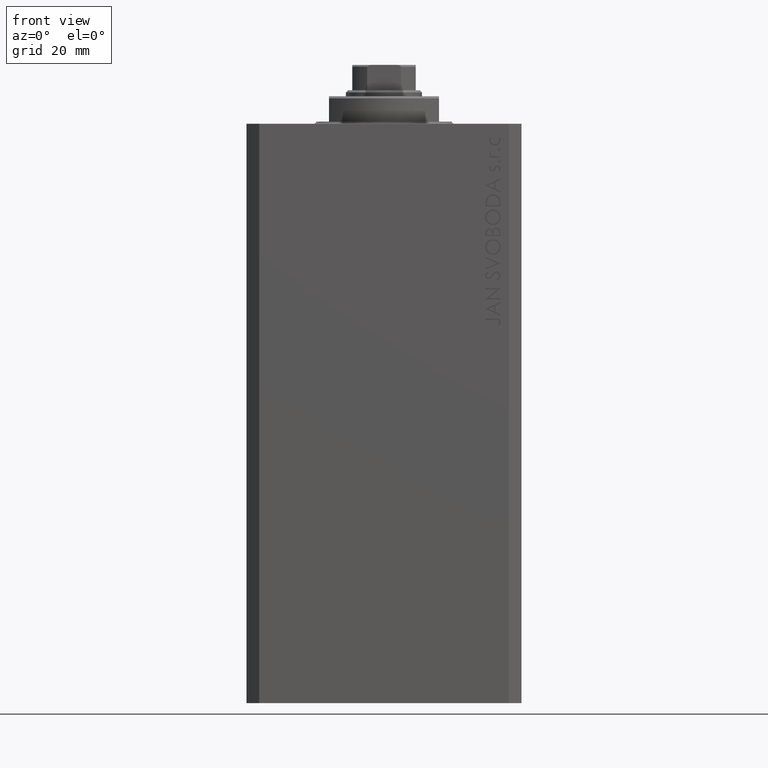
[diagram: clean part render]
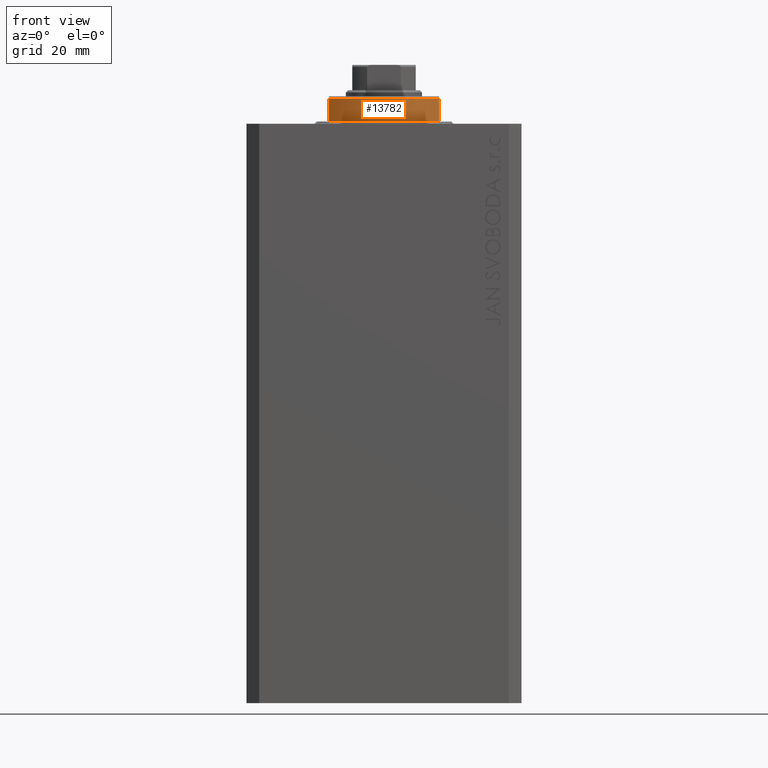
[diagram: same view with one face highlighted and labeled with its STEP entity id]
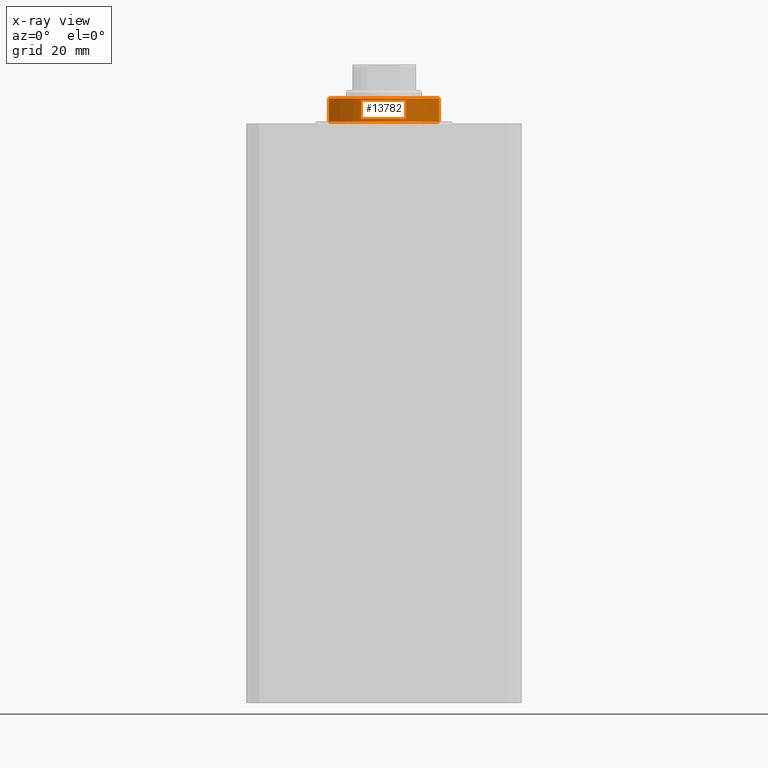
[diagram: x-ray of the same camera — body ghosted, the highlighted face saturated]
A machine part, front view. The second image highlights one B-rep face of the part: STEP entity #13782.
The next image is the same camera in x-ray: the body ghosted, the highlighted face saturated — about 0% of this face is hidden behind the body in this view.
In plain terms, the highlighted cylindrical surface (partial cylindrical patch) has radius 16 mm, axis along (0, 0, -1).
Its self-contained STEP definition (entity closure, byte-faithful):
#196 = CARTESIAN_POINT ( 'NONE',  ( 13.00000000000000000, -9.327379053088815652, -6.000000000000030198 ) ) ;
#1132 = DIRECTION ( 'NONE',  ( 0.000000000000000000, 0.000000000000000000, -1.000000000000000000 ) ) ;
#1429 = AXIS2_PLACEMENT_3D ( 'NONE', #14612, #44217, #36787 ) ;
#1435 = CYLINDRICAL_SURFACE ( 'NONE', #38572, 16.00000000000000000 ) ;
#3150 = DIRECTION ( 'NONE',  ( 1.000000000000000000, 0.000000000000000000, 0.000000000000000000 ) ) ;
#5891 = EDGE_CURVE ( 'NONE', #15892, #45663, #13057, .T. ) ;
#9237 = CARTESIAN_POINT ( 'NONE',  ( 13.00000000000000000, -9.327379053088813876, -6.500000000000000000 ) ) ;
#9511 = VECTOR ( 'NONE', #42661, 1000.000000000000000 ) ;
#12202 = DIRECTION ( 'NONE',  ( 1.000000000000000000, 0.000000000000000000, 0.000000000000000000 ) ) ;
#12603 = CARTESIAN_POINT ( 'NONE',  ( -13.00000000000000000, -9.327379053088813876, -6.500000000000000000 ) ) ;
#13057 = LINE ( 'NONE', #9237, #9511 ) ;
#13782 = ADVANCED_FACE ( 'NONE', ( #15788 ), #1435, .T. ) ;
#13904 = CARTESIAN_POINT ( 'NONE',  ( 0.000000000000000000, 0.000000000000000000, -0.4999999999999995559 ) ) ;
#14612 = CARTESIAN_POINT ( 'NONE',  ( 0.000000000000000000, 0.000000000000000000, -6.000000000000030198 ) ) ;
#15788 = FACE_OUTER_BOUND ( 'NONE', #30275, .T. ) ;
#15892 = VERTEX_POINT ( 'NONE', #27984 ) ;
#18061 = ORIENTED_EDGE ( 'NONE', *, *, #33158, .T. ) ;
#20180 = ORIENTED_EDGE ( 'NONE', *, *, #45039, .T. ) ;
#20763 = CIRCLE ( 'NONE', #40588, 16.00000000000000000 ) ;
#22297 = CARTESIAN_POINT ( 'NONE',  ( -13.00000000000000000, -9.327379053088815652, -6.000000000000030198 ) ) ;
#22299 = CARTESIAN_POINT ( 'NONE',  ( -13.00000000000000000, -9.327379053088815652, -0.4999999999999995559 ) ) ;
#27984 = CARTESIAN_POINT ( 'NONE',  ( 13.00000000000000000, -9.327379053088815652, -0.4999999999999995559 ) ) ;
#27989 = DIRECTION ( 'NONE',  ( -0.000000000000000000, -0.000000000000000000, -1.000000000000000000 ) ) ;
#30275 = EDGE_LOOP ( 'NONE', ( #36493, #20180, #34860, #18061 ) ) ;
#30321 = DIRECTION ( 'NONE',  ( -0.000000000000000000, -0.000000000000000000, 1.000000000000000000 ) ) ;
#30391 = VERTEX_POINT ( 'NONE', #22299 ) ;
#33158 = EDGE_CURVE ( 'NONE', #38815, #45663, #44171, .T. ) ;
#34860 = ORIENTED_EDGE ( 'NONE', *, *, #46834, .T. ) ;
#36493 = ORIENTED_EDGE ( 'NONE', *, *, #5891, .F. ) ;
#36787 = DIRECTION ( 'NONE',  ( -1.000000000000000000, 0.000000000000000000, 0.000000000000000000 ) ) ;
#36803 = VECTOR ( 'NONE', #1132, 1000.000000000000000 ) ;
#37908 = LINE ( 'NONE', #12603, #36803 ) ;
#38572 = AXIS2_PLACEMENT_3D ( 'NONE', #45373, #30321, #12202 ) ;
#38815 = VERTEX_POINT ( 'NONE', #22297 ) ;
#40588 = AXIS2_PLACEMENT_3D ( 'NONE', #13904, #27989, #3150 ) ;
#42661 = DIRECTION ( 'NONE',  ( 0.000000000000000000, 0.000000000000000000, -1.000000000000000000 ) ) ;
#44171 = CIRCLE ( 'NONE', #1429, 16.00000000000000000 ) ;
#44217 = DIRECTION ( 'NONE',  ( 0.000000000000000000, 0.000000000000000000, 1.000000000000000000 ) ) ;
#45039 = EDGE_CURVE ( 'NONE', #15892, #30391, #20763, .T. ) ;
#45373 = CARTESIAN_POINT ( 'NONE',  ( 0.000000000000000000, 0.000000000000000000, -6.500000000000000000 ) ) ;
#45663 = VERTEX_POINT ( 'NONE', #196 ) ;
#46834 = EDGE_CURVE ( 'NONE', #30391, #38815, #37908, .T. ) ;